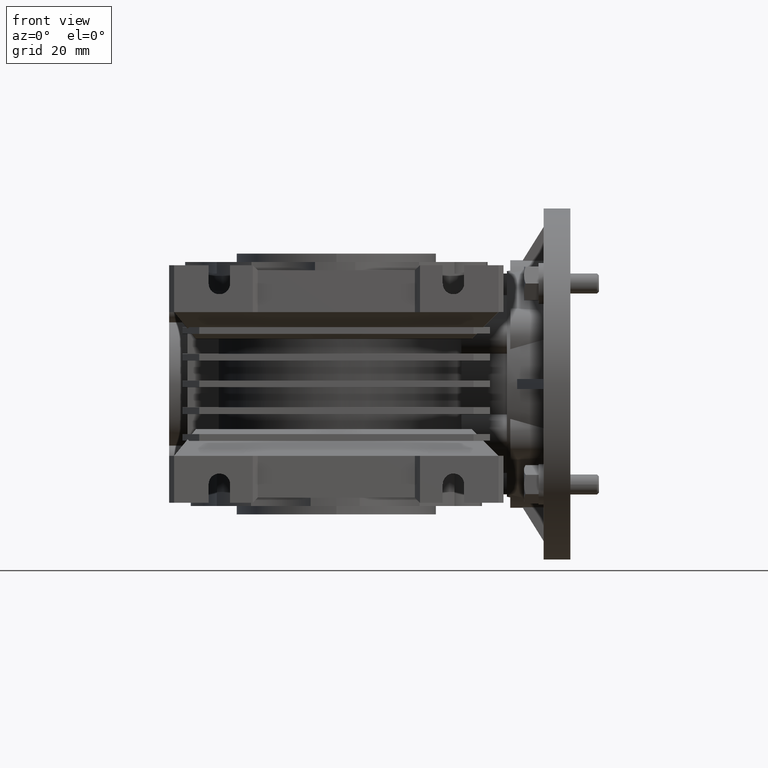
[diagram: clean part render]
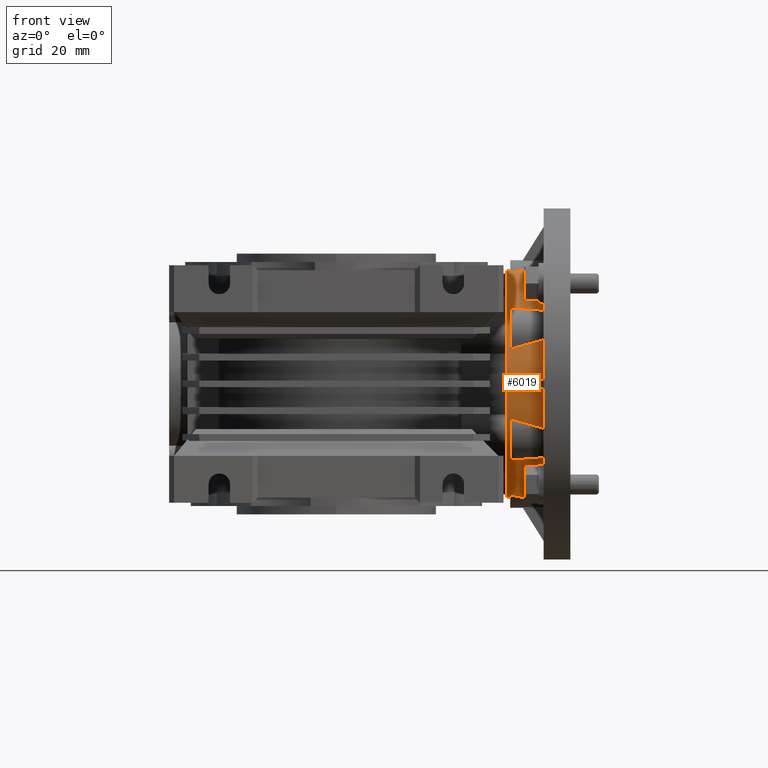
[diagram: same view with one face highlighted and labeled with its STEP entity id]
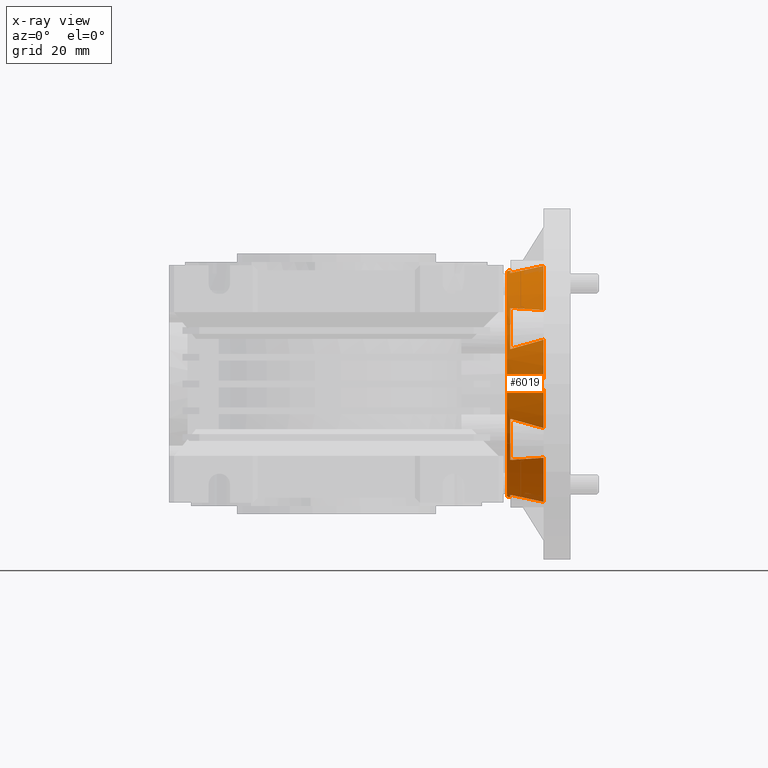
[diagram: x-ray of the same camera — body ghosted, the highlighted face saturated]
A machine part, front view. The second image highlights one B-rep face of the part: STEP entity #6019.
The next image is the same camera in x-ray: the body ghosted, the highlighted face saturated — about 3% of this face is hidden behind the body in this view.
In plain terms, the highlighted conical surface has half-angle 10 deg.
Its self-contained STEP definition (entity closure, byte-faithful):
#68 = CIRCLE ( 'NONE', #26760, 33.90673019291534729 ) ;
#132 = DIRECTION ( 'NONE',  ( 0.000000000000000000, 1.841818564628614818E-15, -1.000000000000000000 ) ) ;
#223 = ORIENTED_EDGE ( 'NONE', *, *, #20659, .T. ) ;
#351 = CARTESIAN_POINT ( 'NONE',  ( 55.36922314462540839, 33.38798007656040312, -33.86350333948890778 ) ) ;
#410 = CARTESIAN_POINT ( 'NONE',  ( 62.00000000000000000, 34.90582742090969504, -35.30436666666666667 ) ) ;
#1308 = VECTOR ( 'NONE', #19927, 1000.000000000000114 ) ;
#1420 = EDGE_CURVE ( 'NONE', #2023, #8324, #12351, .T. ) ;
#1540 = DIRECTION ( 'NONE',  ( -1.000000000000000000, 0.000000000000000000, 0.000000000000000000 ) ) ;
#1673 = EDGE_CURVE ( 'NONE', #3877, #17983, #17147, .T. ) ;
#1711 = VERTEX_POINT ( 'NONE', #25049 ) ;
#1866 = EDGE_CURVE ( 'NONE', #20517, #3877, #12863, .T. ) ;
#2023 = VERTEX_POINT ( 'NONE', #5312 ) ;
#2377 = ORIENTED_EDGE ( 'NONE', *, *, #25307, .F. ) ;
#2417 = DIRECTION ( 'NONE',  ( 0.000000000000000000, 0.000000000000000000, -1.000000000000000000 ) ) ;
#2450 = AXIS2_PLACEMENT_3D ( 'NONE', #16377, #12231, #21481 ) ;
#2764 = VERTEX_POINT ( 'NONE', #18708 ) ;
#2921 = CARTESIAN_POINT ( 'NONE',  ( 55.36922314462542261, 7.367335885143634577, -11.20557444571691086 ) ) ;
#3190 = ORIENTED_EDGE ( 'NONE', *, *, #15248, .T. ) ;
#3511 = CARTESIAN_POINT ( 'NONE',  ( 52.00000000000000000, 14.84647306520540333, -22.73689589886270213 ) ) ;
#3542 = CONICAL_SURFACE ( 'NONE', #14394, 35.67000000000000171, 0.1745329251994325870 ) ;
#3672 = DIRECTION ( 'NONE',  ( 0.000000000000000000, 0.000000000000000000, -1.000000000000000000 ) ) ;
#3819 = CARTESIAN_POINT ( 'NONE',  ( 53.68882255899676181, 14.42382300622534430, -22.71339996615967038 ) ) ;
#3870 = CARTESIAN_POINT ( 'NONE',  ( 55.36922314462540839, 33.38798007656038891, 33.86350333948890778 ) ) ;
#3877 = VERTEX_POINT ( 'NONE', #30382 ) ;
#3979 = DIRECTION ( 'NONE',  ( 1.000000000000000000, 0.000000000000000000, 0.000000000000000000 ) ) ;
#4222 = VECTOR ( 'NONE', #4505, 1000.000000000000114 ) ;
#4505 = DIRECTION ( 'NONE',  ( 0.9848077530122081313, 2.126576849575767601E-17, 0.1736481776669299981 ) ) ;
#4674 = CARTESIAN_POINT ( 'NONE',  ( 60.36331857194974049, 34.42337417869581628, -34.94317212828016039 ) ) ;
#4792 = VERTEX_POINT ( 'NONE', #12784 ) ;
#4946 = DIRECTION ( 'NONE',  ( -1.000000000000000000, 0.000000000000000000, 0.000000000000000000 ) ) ;
#5176 = CARTESIAN_POINT ( 'NONE',  ( 62.00000000000001421, 11.97260789169127904, 22.06386619808763072 ) ) ;
#5312 = CARTESIAN_POINT ( 'NONE',  ( 51.00000000000000000, 40.00000000000000711, 33.73040321220690174 ) ) ;
#5362 = VERTEX_POINT ( 'NONE', #11211 ) ;
#5651 = ORIENTED_EDGE ( 'NONE', *, *, #29487, .T. ) ;
#5861 = DIRECTION ( 'NONE',  ( -1.000000000000000000, 0.000000000000000000, 0.000000000000000000 ) ) ;
#5920 = CARTESIAN_POINT ( 'NONE',  ( 52.00000000000000000, 7.732507080985374870, 10.41514537087689440 ) ) ;
#5991 = CARTESIAN_POINT ( 'NONE',  ( 52.00000000000000000, 40.00000000000000000, 0.000000000000000000 ) ) ;
#6019 = ADVANCED_FACE ( 'NONE', ( #27056 ), #3542, .T. ) ;
#6026 = CARTESIAN_POINT ( 'NONE',  ( 51.00000000000000000, 40.00000000000000000, -33.73040321220690174 ) ) ;
#6136 = CARTESIAN_POINT ( 'NONE',  ( 60.36331857194972628, 12.52663815874913134, -22.30108569278977626 ) ) ;
#6328 = VERTEX_POINT ( 'NONE', #410 ) ;
#6492 = CARTESIAN_POINT ( 'NONE',  ( 54.03999999999999915, 40.00000000000000000, 0.000000000000000000 ) ) ;
#6501 = CARTESIAN_POINT ( 'NONE',  ( 56.69333030588989430, 5.298106846998958730, -1.500000000000000000 ) ) ;
#7028 = AXIS2_PLACEMENT_3D ( 'NONE', #18279, #18738, #18130 ) ;
#7131 = CARTESIAN_POINT ( 'NONE',  ( 52.00000000000000000, 7.732507080985374870, 10.41514537087689440 ) ) ;
#7274 = VERTEX_POINT ( 'NONE', #23335 ) ;
#7729 = ORIENTED_EDGE ( 'NONE', *, *, #10173, .T. ) ;
#7730 = CARTESIAN_POINT ( 'NONE',  ( 62.00000000000000000, 40.00000000000000000, 0.000000000000000000 ) ) ;
#8237 = CARTESIAN_POINT ( 'NONE',  ( 52.00000000000000000, 40.00000000000000000, -33.90673019291535439 ) ) ;
#8260 = CARTESIAN_POINT ( 'NONE',  ( 60.36331857194971917, 6.950012337444937849, 12.64208643549038413 ) ) ;
#8324 = VERTEX_POINT ( 'NONE', #6026 ) ;
#8411 = DIRECTION ( 'NONE',  ( 0.000000000000000000, 5.320809186704886902E-15, -1.000000000000000000 ) ) ;
#8519 = CIRCLE ( 'NONE', #7028, 35.67000000000000171 ) ;
#8680 = EDGE_CURVE ( 'NONE', #19558, #22581, #22394, .T. ) ;
#8830 = CARTESIAN_POINT ( 'NONE',  ( 52.00000000000000000, 32.88603401577999108, 33.15204126973959831 ) ) ;
#8974 = CARTESIAN_POINT ( 'NONE',  ( 54.03999999999999915, 5.766409468454080312, -1.500000000000000000 ) ) ;
#9038 = CARTESIAN_POINT ( 'NONE',  ( 62.00000000000000000, 4.361553064141515890, 1.500000000000000000 ) ) ;
#9067 = EDGE_CURVE ( 'NONE', #1711, #27990, #11628, .T. ) ;
#9394 = CARTESIAN_POINT ( 'NONE',  ( 52.00000000000000000, 40.00000000000000000, 0.000000000000000000 ) ) ;
#10173 = EDGE_CURVE ( 'NONE', #17983, #2764, #30367, .T. ) ;
#10378 = ORIENTED_EDGE ( 'NONE', *, *, #23113, .T. ) ;
#10433 = ORIENTED_EDGE ( 'NONE', *, *, #1673, .T. ) ;
#10510 = LINE ( 'NONE', #15282, #1308 ) ;
#10744 = DIRECTION ( 'NONE',  ( -1.000000000000000000, 0.000000000000000000, 0.000000000000000000 ) ) ;
#10793 = B_SPLINE_CURVE_WITH_KNOTS ( 'NONE', 3,
 ( #20141, #10886, #29898, #20284 ),
 .UNSPECIFIED., .F., .F.,
 ( 4, 4 ),
 ( 6.992893892674700985E-18, 0.008083020568867699263 ),
 .UNSPECIFIED. ) ;
#10864 = CARTESIAN_POINT ( 'NONE',  ( 58.70622753682879136, 34.04208080329965469, 34.58187260523109074 ) ) ;
#10886 = CARTESIAN_POINT ( 'NONE',  ( 56.69333030588989430, 5.298106846998958730, 1.500000000000000000 ) ) ;
#10975 = DIRECTION ( 'NONE',  ( 0.000000000000000000, 0.000000000000000000, -1.000000000000000000 ) ) ;
#11054 = LINE ( 'NONE', #18435, #4222 ) ;
#11211 = CARTESIAN_POINT ( 'NONE',  ( 62.00000000000000000, 6.878435312600973184, 13.24050046857905016 ) ) ;
#11213 = CARTESIAN_POINT ( 'NONE',  ( 52.00000000000000000, 14.84647306520540333, -22.73689589886270213 ) ) ;
#11320 = CARTESIAN_POINT ( 'NONE',  ( 60.36331857194972628, 34.42337417869581628, 34.94317212828015329 ) ) ;
#11628 = B_SPLINE_CURVE_WITH_KNOTS ( 'NONE', 3,
 ( #12936, #22376, #22524, #24997, #15401, #25149 ),
 .UNSPECIFIED., .F., .F.,
 ( 4, 2, 4 ),
 ( 0.000000000000000000, 0.005213254022529090204, 0.01042650804505818041 ),
 .UNSPECIFIED. ) ;
#11724 = ORIENTED_EDGE ( 'NONE', *, *, #1866, .T. ) ;
#11773 = EDGE_LOOP ( 'NONE', ( #2377, #26874, #14249, #223, #20395, #28533, #10378, #11724, #10433, #7729, #16848, #16094, #30400, #5651, #3190, #15179, #12226, #14527, #16022, #14070 ) ) ;
#11803 = EDGE_CURVE ( 'NONE', #4792, #19558, #29159, .T. ) ;
#12226 = ORIENTED_EDGE ( 'NONE', *, *, #9067, .T. ) ;
#12231 = DIRECTION ( 'NONE',  ( 1.000000000000000000, 0.000000000000000000, 0.000000000000000000 ) ) ;
#12275 = CARTESIAN_POINT ( 'NONE',  ( 53.68882255899674050, 33.11770711987643523, -33.50631899137579950 ) ) ;
#12351 = CIRCLE ( 'NONE', #2450, 33.73040321220690174 ) ;
#12379 = CARTESIAN_POINT ( 'NONE',  ( 58.70622753682878425, 7.072260215082557089, -12.13122692457805307 ) ) ;
#12784 = CARTESIAN_POINT ( 'NONE',  ( 62.00000000000001421, 34.90582742090970925, 35.30436666666666667 ) ) ;
#12815 = CARTESIAN_POINT ( 'NONE',  ( 62.00000000000000000, 6.878435312600972296, -13.24050046857904306 ) ) ;
#12863 = CIRCLE ( 'NONE', #17788, 33.90673019291534729 ) ;
#12904 = AXIS2_PLACEMENT_3D ( 'NONE', #6492, #1540, #27085 ) ;
#12936 = CARTESIAN_POINT ( 'NONE',  ( 52.00000000000000000, 14.84647306520539267, 22.73689589886270213 ) ) ;
#13396 = CIRCLE ( 'NONE', #12904, 34.26643723356064442 ) ;
#13470 = CARTESIAN_POINT ( 'NONE',  ( 54.03999999999999915, 5.766409468454080312, 1.500000000000000000 ) ) ;
#13650 = CARTESIAN_POINT ( 'NONE',  ( 54.03999999999999915, 5.766409468454080312, -1.500000000000000000 ) ) ;
#14037 = DIRECTION ( 'NONE',  ( -1.000000000000000000, 0.000000000000000000, 0.000000000000000000 ) ) ;
#14070 = ORIENTED_EDGE ( 'NONE', *, *, #8680, .T. ) ;
#14194 = CARTESIAN_POINT ( 'NONE',  ( 52.00000000000000000, 40.00000000000000000, 0.000000000000000000 ) ) ;
#14249 = ORIENTED_EDGE ( 'NONE', *, *, #22018, .T. ) ;
#14394 = AXIS2_PLACEMENT_3D ( 'NONE', #22252, #3979, #10975 ) ;
#14487 = DIRECTION ( 'NONE',  ( -1.000000000000000000, 0.000000000000000000, 0.000000000000000000 ) ) ;
#14527 = ORIENTED_EDGE ( 'NONE', *, *, #18555, .T. ) ;
#14566 = CARTESIAN_POINT ( 'NONE',  ( 62.00000000000000000, 34.90582742090969504, -35.30436666666666667 ) ) ;
#14865 = B_SPLINE_CURVE_WITH_KNOTS ( 'NONE', 3,
 ( #18238, #27712, #6501, #8974 ),
 .UNSPECIFIED., .F., .F.,
 ( 4, 4 ),
 ( 0.000000000000000000, 0.008083020568867699263 ),
 .UNSPECIFIED. ) ;
#15179 = ORIENTED_EDGE ( 'NONE', *, *, #30267, .T. ) ;
#15248 = EDGE_CURVE ( 'NONE', #5362, #25398, #25947, .T. ) ;
#15282 = CARTESIAN_POINT ( 'NONE',  ( 62.00000000000000000, 40.00000000000000000, -35.67000000000000171 ) ) ;
#15339 = CARTESIAN_POINT ( 'NONE',  ( 62.00000000000000711, 11.97260789169127371, -22.06386619808762362 ) ) ;
#15401 = CARTESIAN_POINT ( 'NONE',  ( 60.36331857194974049, 12.52663815874913489, 22.30108569278977626 ) ) ;
#16022 = ORIENTED_EDGE ( 'NONE', *, *, #11803, .T. ) ;
#16094 = ORIENTED_EDGE ( 'NONE', *, *, #30072, .T. ) ;
#16136 = AXIS2_PLACEMENT_3D ( 'NONE', #23247, #10744, #8411 ) ;
#16377 = CARTESIAN_POINT ( 'NONE',  ( 51.00000000000000000, 40.00000000000000000, 0.000000000000000000 ) ) ;
#16477 = EDGE_CURVE ( 'NONE', #6328, #22744, #8519, .T. ) ;
#16848 = ORIENTED_EDGE ( 'NONE', *, *, #17758, .T. ) ;
#16991 = DIRECTION ( 'NONE',  ( 0.000000000000000000, 0.000000000000000000, -1.000000000000000000 ) ) ;
#17050 = CARTESIAN_POINT ( 'NONE',  ( 58.70622753682880557, 7.072260215082558865, 12.13122692457806018 ) ) ;
#17147 = B_SPLINE_CURVE_WITH_KNOTS ( 'NONE', 3,
 ( #24119, #26443, #2921, #12379, #28913, #21945 ),
 .UNSPECIFIED., .F., .F.,
 ( 4, 2, 4 ),
 ( 0.000000000000000000, 0.005213254022529085867, 0.01042650804505817173 ),
 .UNSPECIFIED. ) ;
#17659 = CARTESIAN_POINT ( 'NONE',  ( 53.68882255899675471, 7.541530126101791076, 10.79291902521613444 ) ) ;
#17758 = EDGE_CURVE ( 'NONE', #2764, #26928, #14865, .T. ) ;
#17788 = AXIS2_PLACEMENT_3D ( 'NONE', #9394, #14037, #2417 ) ;
#17868 = B_SPLINE_CURVE_WITH_KNOTS ( 'NONE', 3,
 ( #25873, #12275, #351, #23858, #4674, #14566 ),
 .UNSPECIFIED., .F., .F.,
 ( 4, 2, 4 ),
 ( 0.000000000000000000, 0.005213254022529090204, 0.01042650804505818041 ),
 .UNSPECIFIED. ) ;
#17937 = CARTESIAN_POINT ( 'NONE',  ( 53.68882255899675471, 33.11770711987644944, 33.50631899137579950 ) ) ;
#17983 = VERTEX_POINT ( 'NONE', #12815 ) ;
#18130 = DIRECTION ( 'NONE',  ( 0.000000000000000000, 0.000000000000000000, -1.000000000000000000 ) ) ;
#18238 = CARTESIAN_POINT ( 'NONE',  ( 62.00000000000000000, 4.361553064141515890, -1.500000000000000000 ) ) ;
#18240 = EDGE_CURVE ( 'NONE', #24506, #23665, #10793, .T. ) ;
#18279 = CARTESIAN_POINT ( 'NONE',  ( 62.00000000000000000, 40.00000000000000000, 0.000000000000000000 ) ) ;
#18435 = CARTESIAN_POINT ( 'NONE',  ( 62.00000000000000000, 40.00000000000000711, 35.67000000000000171 ) ) ;
#18555 = EDGE_CURVE ( 'NONE', #27990, #4792, #26406, .T. ) ;
#18708 = CARTESIAN_POINT ( 'NONE',  ( 62.00000000000000000, 4.361553064141515890, -1.500000000000000000 ) ) ;
#18738 = DIRECTION ( 'NONE',  ( -1.000000000000000000, 0.000000000000000000, 0.000000000000000000 ) ) ;
#18756 = CARTESIAN_POINT ( 'NONE',  ( 52.00000000000000000, 40.00000000000000711, 33.90673019291535439 ) ) ;
#18997 = AXIS2_PLACEMENT_3D ( 'NONE', #26258, #14487, #26412 ) ;
#19558 = VERTEX_POINT ( 'NONE', #30503 ) ;
#19927 = DIRECTION ( 'NONE',  ( 0.9848077530122081313, 0.000000000000000000, -0.1736481776669299981 ) ) ;
#20141 = CARTESIAN_POINT ( 'NONE',  ( 54.03999999999999915, 5.766409468454080312, 1.500000000000000000 ) ) ;
#20284 = CARTESIAN_POINT ( 'NONE',  ( 62.00000000000000000, 4.361553064141515890, 1.500000000000000000 ) ) ;
#20395 = ORIENTED_EDGE ( 'NONE', *, *, #22535, .T. ) ;
#20517 = VERTEX_POINT ( 'NONE', #11213 ) ;
#20580 = CARTESIAN_POINT ( 'NONE',  ( 62.00000000000001421, 34.90582742090970925, 35.30436666666666667 ) ) ;
#20659 = EDGE_CURVE ( 'NONE', #22738, #7274, #24551, .T. ) ;
#21312 = DIRECTION ( 'NONE',  ( -1.000000000000000000, 0.000000000000000000, 0.000000000000000000 ) ) ;
#21481 = DIRECTION ( 'NONE',  ( 0.000000000000000000, 0.000000000000000000, -1.000000000000000000 ) ) ;
#21535 = B_SPLINE_CURVE_WITH_KNOTS ( 'NONE', 3,
 ( #27358, #6136, #25021, #29361, #3819, #3511 ),
 .UNSPECIFIED., .F., .F.,
 ( 4, 2, 4 ),
 ( 7.152448122690996019E-18, 0.005213254022529098010, 0.01042650804505818908 ),
 .UNSPECIFIED. ) ;
#21945 = CARTESIAN_POINT ( 'NONE',  ( 62.00000000000000000, 6.878435312600972296, -13.24050046857904306 ) ) ;
#22018 = EDGE_CURVE ( 'NONE', #8324, #22738, #10510, .T. ) ;
#22252 = CARTESIAN_POINT ( 'NONE',  ( 62.00000000000000000, 40.00000000000000000, 0.000000000000000000 ) ) ;
#22269 = AXIS2_PLACEMENT_3D ( 'NONE', #7730, #5861, #16991 ) ;
#22376 = CARTESIAN_POINT ( 'NONE',  ( 53.68882255899674050, 14.42382300622533897, 22.71339996615966328 ) ) ;
#22394 = CIRCLE ( 'NONE', #27351, 33.90673019291534729 ) ;
#22524 = CARTESIAN_POINT ( 'NONE',  ( 55.36922314462542261, 13.97935580858324478, 22.65792889377199515 ) ) ;
#22535 = EDGE_CURVE ( 'NONE', #7274, #6328, #17868, .T. ) ;
#22581 = VERTEX_POINT ( 'NONE', #18756 ) ;
#22738 = VERTEX_POINT ( 'NONE', #8237 ) ;
#22744 = VERTEX_POINT ( 'NONE', #15339 ) ;
#23113 = EDGE_CURVE ( 'NONE', #22744, #20517, #21535, .T. ) ;
#23247 = CARTESIAN_POINT ( 'NONE',  ( 52.00000000000000000, 40.00000000000000000, 0.000000000000000000 ) ) ;
#23335 = CARTESIAN_POINT ( 'NONE',  ( 51.99999999999999289, 32.88603401577997687, -33.15204126973959831 ) ) ;
#23665 = VERTEX_POINT ( 'NONE', #9038 ) ;
#23858 = CARTESIAN_POINT ( 'NONE',  ( 58.70622753682877004, 34.04208080329965469, -34.58187260523107653 ) ) ;
#24119 = CARTESIAN_POINT ( 'NONE',  ( 52.00000000000000000, 7.732507080985375758, -10.41514537087689618 ) ) ;
#24300 = CARTESIAN_POINT ( 'NONE',  ( 62.00000000000000000, 40.00000000000000000, 0.000000000000000000 ) ) ;
#24506 = VERTEX_POINT ( 'NONE', #13470 ) ;
#24551 = CIRCLE ( 'NONE', #16136, 33.90673019291534729 ) ;
#24997 = CARTESIAN_POINT ( 'NONE',  ( 58.70622753682877004, 13.03017941178291039, 22.45064568065302524 ) ) ;
#25021 = CARTESIAN_POINT ( 'NONE',  ( 58.70622753682878425, 13.03017941178291039, -22.45064568065302879 ) ) ;
#25049 = CARTESIAN_POINT ( 'NONE',  ( 52.00000000000000000, 14.84647306520539267, 22.73689589886270213 ) ) ;
#25149 = CARTESIAN_POINT ( 'NONE',  ( 62.00000000000001421, 11.97260789169127904, 22.06386619808763072 ) ) ;
#25186 = DIRECTION ( 'NONE',  ( 0.000000000000000000, 0.000000000000000000, -1.000000000000000000 ) ) ;
#25307 = EDGE_CURVE ( 'NONE', #2023, #22581, #11054, .T. ) ;
#25398 = VERTEX_POINT ( 'NONE', #7131 ) ;
#25873 = CARTESIAN_POINT ( 'NONE',  ( 51.99999999999999289, 32.88603401577997687, -33.15204126973959831 ) ) ;
#25947 = B_SPLINE_CURVE_WITH_KNOTS ( 'NONE', 3,
 ( #29454, #8260, #17050, #26527, #17659, #5920 ),
 .UNSPECIFIED., .F., .F.,
 ( 4, 2, 4 ),
 ( 0.000000000000000000, 0.005213254022529088469, 0.01042650804505817694 ),
 .UNSPECIFIED. ) ;
#26258 = CARTESIAN_POINT ( 'NONE',  ( 62.00000000000000000, 40.00000000000000000, 0.000000000000000000 ) ) ;
#26406 = CIRCLE ( 'NONE', #27415, 35.67000000000000171 ) ;
#26412 = DIRECTION ( 'NONE',  ( 0.000000000000000000, 0.000000000000000000, -1.000000000000000000 ) ) ;
#26443 = CARTESIAN_POINT ( 'NONE',  ( 53.68882255899674760, 7.541530126101791076, -10.79291902521613089 ) ) ;
#26527 = CARTESIAN_POINT ( 'NONE',  ( 55.36922314462542261, 7.367335885143631913, 11.20557444571690908 ) ) ;
#26760 = AXIS2_PLACEMENT_3D ( 'NONE', #14194, #21312, #132 ) ;
#26874 = ORIENTED_EDGE ( 'NONE', *, *, #1420, .T. ) ;
#26928 = VERTEX_POINT ( 'NONE', #13650 ) ;
#27056 = FACE_OUTER_BOUND ( 'NONE', #11773, .T. ) ;
#27085 = DIRECTION ( 'NONE',  ( 0.000000000000000000, 0.000000000000000000, -1.000000000000000000 ) ) ;
#27351 = AXIS2_PLACEMENT_3D ( 'NONE', #5991, #27831, #25186 ) ;
#27358 = CARTESIAN_POINT ( 'NONE',  ( 62.00000000000000711, 11.97260789169127371, -22.06386619808762362 ) ) ;
#27415 = AXIS2_PLACEMENT_3D ( 'NONE', #24300, #4946, #3672 ) ;
#27712 = CARTESIAN_POINT ( 'NONE',  ( 59.34666375866200383, 4.829822055019199922, -1.500000000000000000 ) ) ;
#27831 = DIRECTION ( 'NONE',  ( -1.000000000000000000, 0.000000000000000000, 0.000000000000000000 ) ) ;
#27990 = VERTEX_POINT ( 'NONE', #5176 ) ;
#28533 = ORIENTED_EDGE ( 'NONE', *, *, #16477, .T. ) ;
#28913 = CARTESIAN_POINT ( 'NONE',  ( 60.36331857194973338, 6.950012337444936072, -12.64208643549040012 ) ) ;
#29159 = B_SPLINE_CURVE_WITH_KNOTS ( 'NONE', 3,
 ( #20580, #11320, #10864, #3870, #17937, #8830 ),
 .UNSPECIFIED., .F., .F.,
 ( 4, 2, 4 ),
 ( 6.938893903907228378E-18, 0.005213254022529099745, 0.01042650804505819255 ),
 .UNSPECIFIED. ) ;
#29361 = CARTESIAN_POINT ( 'NONE',  ( 55.36922314462539418, 13.97935580858324123, -22.65792889377199515 ) ) ;
#29454 = CARTESIAN_POINT ( 'NONE',  ( 62.00000000000000000, 6.878435312600973184, 13.24050046857905016 ) ) ;
#29487 = EDGE_CURVE ( 'NONE', #23665, #5362, #30180, .T. ) ;
#29898 = CARTESIAN_POINT ( 'NONE',  ( 59.34666375866200383, 4.829822055019199922, 1.500000000000000000 ) ) ;
#30072 = EDGE_CURVE ( 'NONE', #26928, #24506, #13396, .T. ) ;
#30180 = CIRCLE ( 'NONE', #22269, 35.67000000000000171 ) ;
#30267 = EDGE_CURVE ( 'NONE', #25398, #1711, #68, .T. ) ;
#30367 = CIRCLE ( 'NONE', #18997, 35.67000000000000171 ) ;
#30382 = CARTESIAN_POINT ( 'NONE',  ( 52.00000000000000000, 7.732507080985375758, -10.41514537087689618 ) ) ;
#30400 = ORIENTED_EDGE ( 'NONE', *, *, #18240, .T. ) ;
#30503 = CARTESIAN_POINT ( 'NONE',  ( 52.00000000000000000, 32.88603401577999108, 33.15204126973959831 ) ) ;